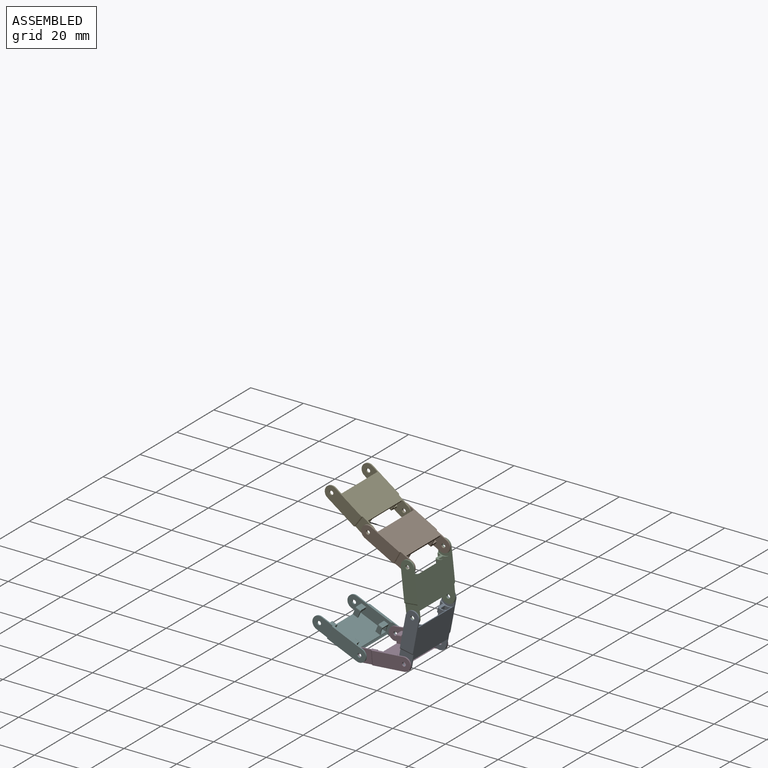
[diagram: assembled view]
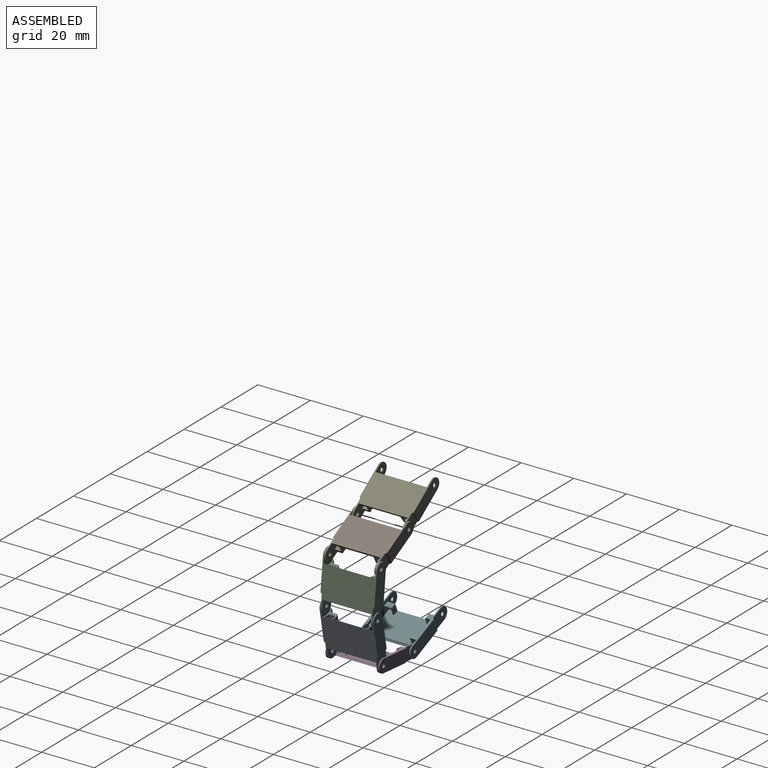
[diagram: assembled view, second angle]
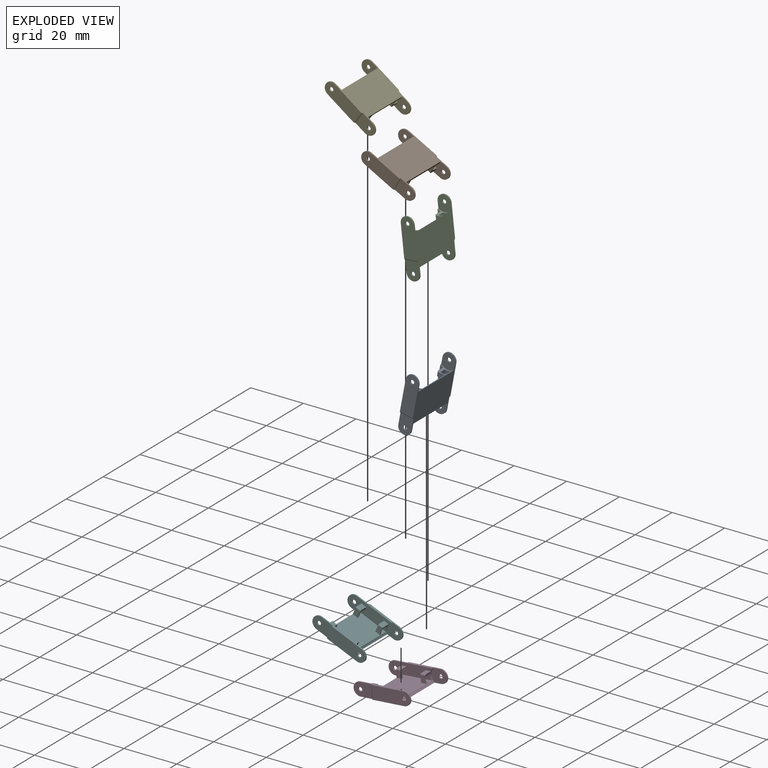
[diagram: exploded view]
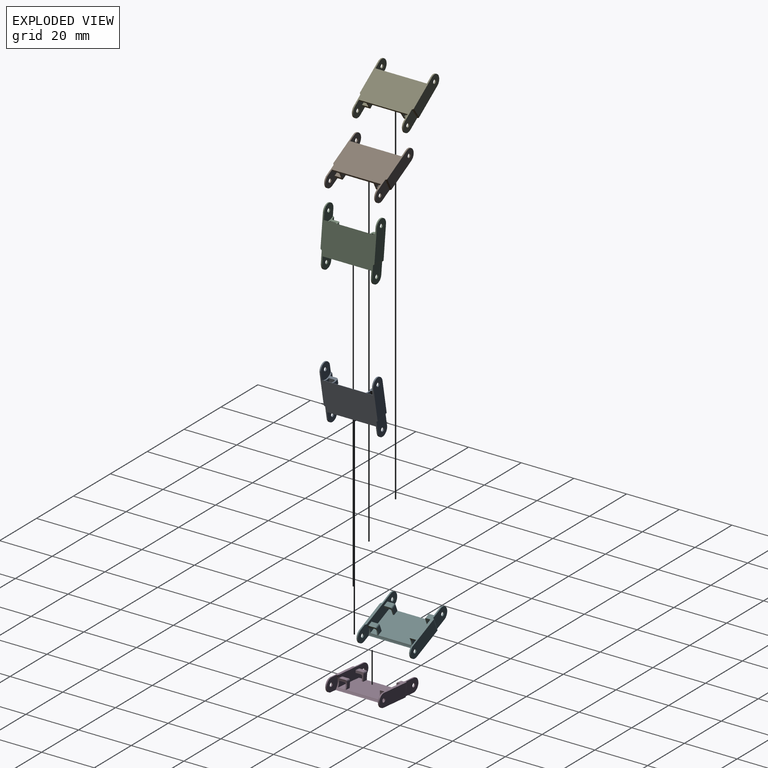
[diagram: exploded view, second angle]
ASSEMBLY  parts=6 mates=5
PART A: 56 faces, bbox 22x20.5x5 mm
  f0: plane 20.46x17mm, normal (0,0,-1), area 247.4mm2, adj f1,f2,f3,f4,f8,f9,f10,f11
  f1: plane 16.5x5mm, normal (0,1,0), area 64mm2, adj f0,f5,f7,f8,f15,f17,f29,f30
  f2: plane 7x5mm, normal (0,-1,0), area 30.6mm2, adj f0,f5,f36,f42,f54
  f3: plane 16.5x5mm, normal (0,-1,0), area 64mm2, adj f0,f6,f7,f8,f21,f22,f24,f26
  f4: plane 7x5mm, normal (0,1,0), area 30.6mm2, adj f0,f6,f35,f41,f51
  f5: plane 17x0.98mm, normal (0,0,1), area 13.1mm2, adj f1,f2,f9,f10,f36,f40,f53,f54
  f6: plane 17x0.98mm, normal (0,0,1), area 13.1mm2, adj f3,f4,f11,f12,f35,f38,f51,f52
  f7: plane 18.5x11.36mm, normal (0,0,1), area 206.3mm2, adj f1,f3,f8,f13,f14,f15,f16,f18
  f8: plane 18.5x3.9mm, normal (1,0,0), area 22.4mm2, adj f0,f1,f3,f7,f23,f25,f26,f27
  f9: plane 6.07x5mm, normal (0,1,0), area 24.3mm2, adj f0,f5,f39,f40,f55
  f10: plane 14.5x5mm, normal (0,-1,0), area 68.1mm2, adj f0,f5,f39,f40,f54
  f11: plane 6.07x5mm, normal (0,-1,0), area 24.3mm2, adj f0,f6,f37,f38,f55
  f12: plane 14.5x5mm, normal (0,1,0), area 68.1mm2, adj f0,f6,f37,f38,f51
  f13: plane 0.49x0.08mm, normal (-1,0,0), area 0mm2, adj f7,f14,f16,f55
  f14: plane 2x1.7mm, normal (0,-1,0), area 3mm2, adj f7,f13,f15,f46,f55
  f15: plane 3.1x3mm, normal (1,0,0), area 3.8mm2, adj f1,f7,f14,f16,f17,f31,f46,f48
  f16: plane 2.6x2mm, normal (0,1,0), area 4.5mm2, adj f7,f13,f15,f48,f55
  f17: plane 2.5x1.9mm, normal (0,0,1), area 4.7mm2, adj f1,f15,f48,f55
  f18: plane 2x1.7mm, normal (0,1,0), area 3mm2, adj f7,f19,f21,f43,f55
  f19: plane 0.49x0.08mm, normal (-1,0,0), area 0mm2, adj f7,f18,f20,f55
  f20: plane 2.6x2mm, normal (0,-1,0), area 4.5mm2, adj f7,f19,f21,f50,f55
  f21: plane 3.1x3mm, normal (1,0,0), area 3.8mm2, adj f3,f7,f18,f20,f22,f32,f43,f50
  f22: plane 2.5x1.9mm, normal (0,0,1), area 4.7mm2, adj f3,f21,f50,f55
  f23: plane 2x1.7mm, normal (0,1,0), area 3.4mm2, adj f7,f8,f24,f44
  f24: plane 3.1x3mm, normal (-1,0,0), area 3.8mm2, adj f3,f7,f23,f25,f26,f33,f44,f49
  f25: plane 2.6x2mm, normal (0,-1,0), area 5.2mm2, adj f7,f8,f24,f49
  f26: plane 2.5x2mm, normal (0,0,1), area 5mm2, adj f3,f8,f24,f49
  f27: plane 2x1.7mm, normal (0,-1,0), area 3.4mm2, adj f7,f8,f29,f45
  f28: plane 2.6x2mm, normal (0,1,0), area 5.2mm2, adj f7,f8,f29,f47
  f29: plane 3.1x3mm, normal (-1,0,0), area 3.8mm2, adj f1,f7,f27,f28,f30,f34,f45,f47
  f30: plane 2.5x2mm, normal (0,0,1), area 5mm2, adj f1,f8,f29,f47
  f31: plane 2.01x1.65mm, normal (0,0,-1), area 3.3mm2, adj f1,f15,f46,f55
  f32: plane 2.01x1.65mm, normal (0,0,-1), area 3.3mm2, adj f3,f21,f43,f55
  f33: plane 2.01x2mm, normal (0,0,-1), area 4mm2, adj f3,f8,f24,f44
  f34: plane 2.01x2mm, normal (0,0,-1), area 4mm2, adj f1,f8,f29,f45
  f35: cylinder r=2.5mm len=5mm, axis (0,1,0), area 3.8mm2, adj f0,f3,f4,f6
  f36: cylinder r=2.5mm len=5mm, axis (0,1,0), area 3.8mm2, adj f0,f1,f2,f5
  f37: cylinder r=0.75mm len=1.5mm, axis (0,1,0), area 2.3mm2, adj f11,f12
  f38: cylinder r=2.5mm len=5mm, axis (0,1,0), area 3.8mm2, adj f0,f6,f11,f12
  f39: cylinder r=0.75mm len=1.5mm, axis (0,1,0), area 2.3mm2, adj f9,f10
  f40: cylinder r=2.5mm len=5mm, axis (0,1,0), area 3.8mm2, adj f0,f5,f9,f10
  f41: cylinder r=0.75mm len=1.5mm, axis (0,1,0), area 2.3mm2, adj f3,f4
  f42: cylinder r=0.75mm len=1.5mm, axis (0,1,0), area 2.3mm2, adj f1,f2
  f43: cylinder r=0.5mm len=1.65mm, axis (-1,0,0), area 1.3mm2, adj f18,f21,f32,f55
  f44: cylinder r=0.5mm len=2mm, axis (-1,0,0), area 1.6mm2, adj f8,f23,f24,f33
  f45: cylinder r=0.5mm len=2mm, axis (1,0,0), area 1.6mm2, adj f8,f27,f29,f34
  f46: cylinder r=0.5mm len=1.65mm, axis (1,0,0), area 1.3mm2, adj f14,f15,f31,f55
  f47: cylinder r=0.5mm len=2mm, axis (-1,0,0), area 1.6mm2, adj f8,f28,f29,f30
  f48: cylinder r=0.5mm len=1.9mm, axis (-1,0,0), area 1.4mm2, adj f15,f16,f17,f55
  f49: cylinder r=0.5mm len=2mm, axis (1,0,0), area 1.6mm2, adj f8,f24,f25,f26
  f50: cylinder r=0.5mm len=1.9mm, axis (1,0,0), area 1.4mm2, adj f20,f21,f22,f55
  f51: cylinder r=0.5mm len=5mm, axis (0,0,1), area 3.9mm2, adj f0,f4,f6,f12
  f52: cylinder r=0.5mm len=0.57mm, axis (0,0,-1), area 0.2mm2, adj f3,f6,f55
  f53: cylinder r=0.5mm len=0.57mm, axis (0,0,-1), area 0.2mm2, adj f1,f5,f55
  f54: cylinder r=0.5mm len=5mm, axis (0,0,-1), area 3.9mm2, adj f0,f2,f5,f10
  f55: cylinder r=3.57mm len=19.48mm, axis (0,-1,0), area 31.5mm2, adj f0,f1,f3,f5,f6,f7,f9,f11
PART B: same geometry as A
PART C: same geometry as A
PART D: same geometry as A
PART E: same geometry as A
PART F: same geometry as A
PLACE A rot(axis=(0.64,0,-0.77),180deg) t=(101.22,-38.76,49)mm
PLACE B rot(axis=(-0.97,0,0.24),180deg) t=(88.43,-38.76,79.13)mm
PLACE C rot(axis=(0.74,0,-0.67),180deg) t=(100.87,-38.76,66.58)mm
PLACE D rot(axis=(0.04,0,-1),180deg) t=(91.76,-38.76,34.76)mm
PLACE E rot(axis=(-0.95,0,0.3),180deg) t=(74.51,-38.76,88.28)mm
PLACE F rot(axis=(-0.2,0,-0.98),180deg) t=(74.01,-38.76,35.91)mm
MATE revolute F.f37 <-> D.f35  axis (0,-1,0) through (79.59,-29.02,36.25)mm
MATE revolute D.f37 <-> A.f35  axis (0,-1,0) through (96.53,-29.02,37.67)mm
MATE revolute C.f37 <-> B.f35  axis (0,-1,0) through (97.84,-29.02,71.27)mm
MATE revolute A.f37 <-> C.f35  axis (0,-1,0) through (99.69,-29.02,54.38)mm
MATE revolute B.f37 <-> E.f35  axis (0,-1,0) through (82.84,-29.02,79.28)mm
